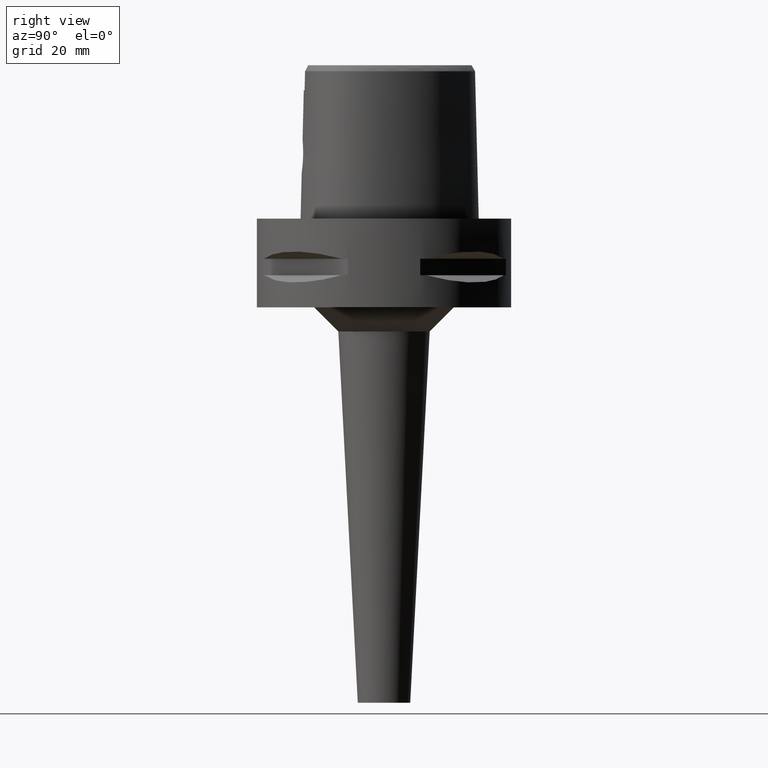
[diagram: clean part render]
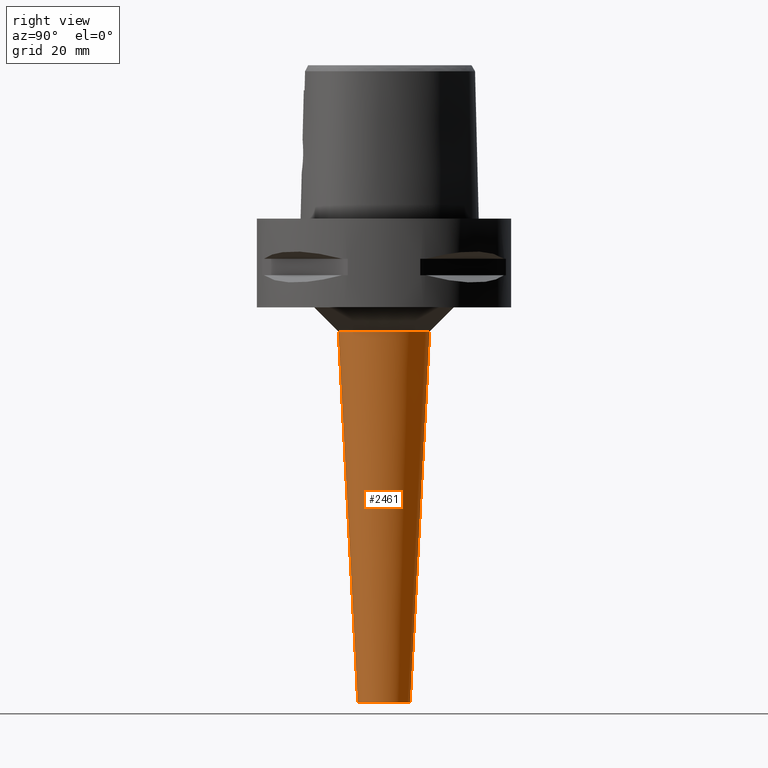
[diagram: same view with one face highlighted and labeled with its STEP entity id]
A machine part, right view. The second image highlights one B-rep face of the part: STEP entity #2461.
In plain terms, the highlighted conical surface has half-angle 3 deg.
Its self-contained STEP definition (entity closure, byte-faithful):
#596=DIRECTION('',(0.E0,-5.233595624294E-2,-9.986295347546E-1));
#597=VECTOR('',#596,9.212625583181E1);
#598=CARTESIAN_POINT('',(0.E0,1.132151569404E1,-2.8E1));
#599=LINE('',#598,#597);
#603=CARTESIAN_POINT('',(0.E0,0.E0,-2.8E1));
#604=DIRECTION('',(0.E0,0.E0,1.E0));
#605=DIRECTION('',(0.E0,-1.E0,0.E0));
#606=AXIS2_PLACEMENT_3D('',#603,#604,#605);
#611=DIRECTION('',(0.E0,5.233595624294E-2,-9.986295347546E-1));
#612=VECTOR('',#611,9.212625583181E1);
#613=CARTESIAN_POINT('',(0.E0,-1.132151569404E1,-2.8E1));
#614=LINE('',#613,#612);
#618=CARTESIAN_POINT('',(0.E0,0.E0,-1.2E2));
#619=DIRECTION('',(0.E0,0.E0,1.E0));
#620=DIRECTION('',(0.E0,-1.E0,0.E0));
#621=AXIS2_PLACEMENT_3D('',#618,#619,#620);
#1536=CARTESIAN_POINT('',(0.E0,1.132151569404E1,-2.8E1));
#1537=VERTEX_POINT('',#1536);
#1538=CARTESIAN_POINT('',(0.E0,-1.132151569404E1,-2.8E1));
#1539=VERTEX_POINT('',#1538);
#1540=CARTESIAN_POINT('',(0.E0,6.5E0,-1.2E2));
#1541=VERTEX_POINT('',#1540);
#1542=CARTESIAN_POINT('',(0.E0,-6.5E0,-1.2E2));
#1543=VERTEX_POINT('',#1542);
#2447=CARTESIAN_POINT('',(0.E0,0.E0,-7.4E1));
#2448=DIRECTION('',(0.E0,0.E0,1.E0));
#2449=DIRECTION('',(0.E0,1.E0,0.E0));
#2450=AXIS2_PLACEMENT_3D('',#2447,#2448,#2449);
#2451=CONICAL_SURFACE('',#2450,8.910757847020E0,3.E0);
#2453=ORIENTED_EDGE('',*,*,#2452,.T.);
#2455=ORIENTED_EDGE('',*,*,#2454,.F.);
#2457=ORIENTED_EDGE('',*,*,#2456,.F.);
#2458=ORIENTED_EDGE('',*,*,#2440,.T.);
#2459=EDGE_LOOP('',(#2453,#2455,#2457,#2458));
#2460=FACE_OUTER_BOUND('',#2459,.F.);
#607=CIRCLE('',#606,1.132151569404E1);
#622=CIRCLE('',#621,6.5E0);
#2440=EDGE_CURVE('',#1539,#1537,#607,.T.);
#2452=EDGE_CURVE('',#1537,#1541,#599,.T.);
#2454=EDGE_CURVE('',#1543,#1541,#622,.T.);
#2456=EDGE_CURVE('',#1539,#1543,#614,.T.);
#2461=ADVANCED_FACE('',(#2460),#2451,.T.);